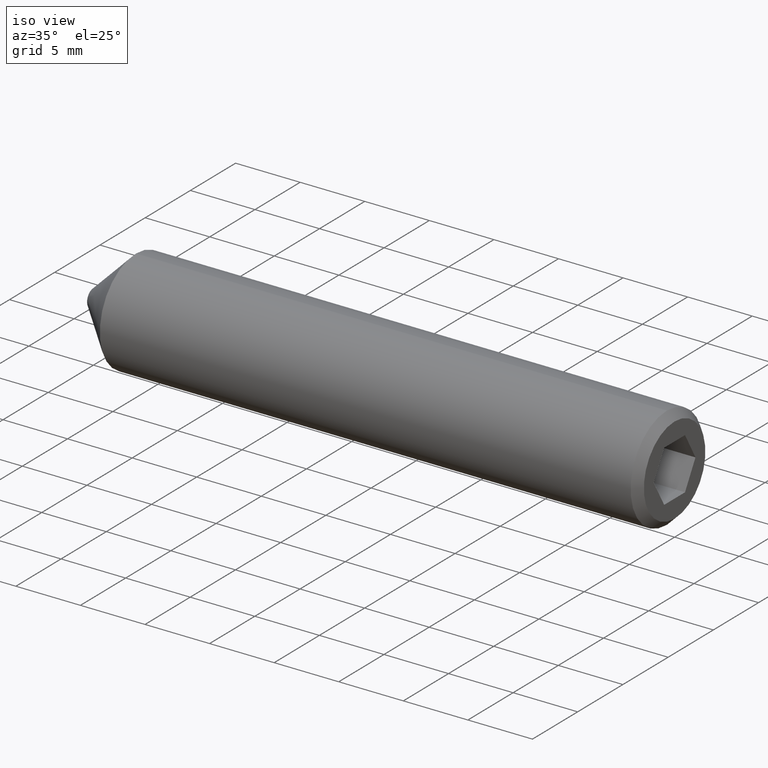
[diagram: clean part render]
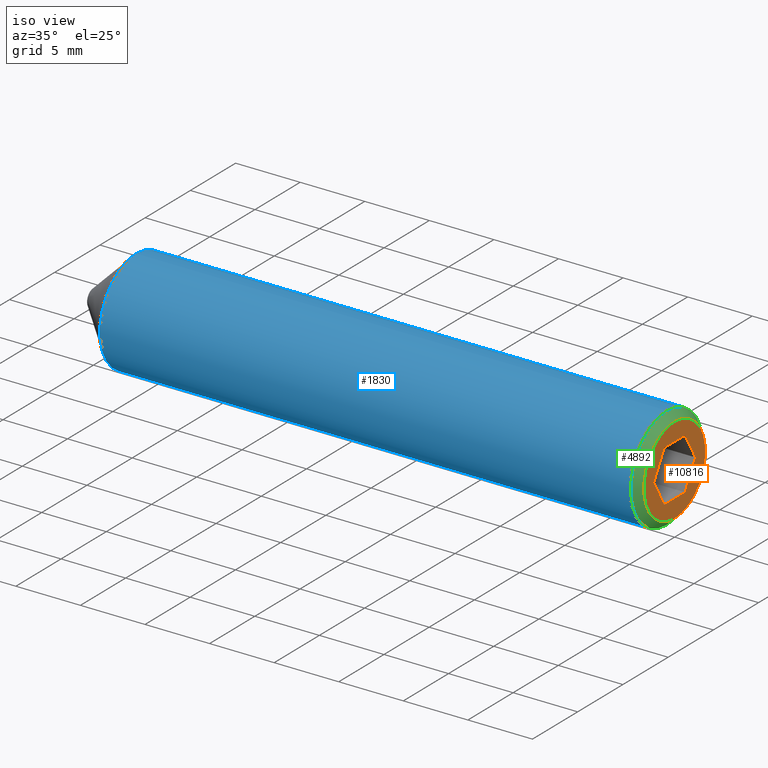
[diagram: same view with three faces highlighted in distinct colors, each labeled with its STEP entity id]
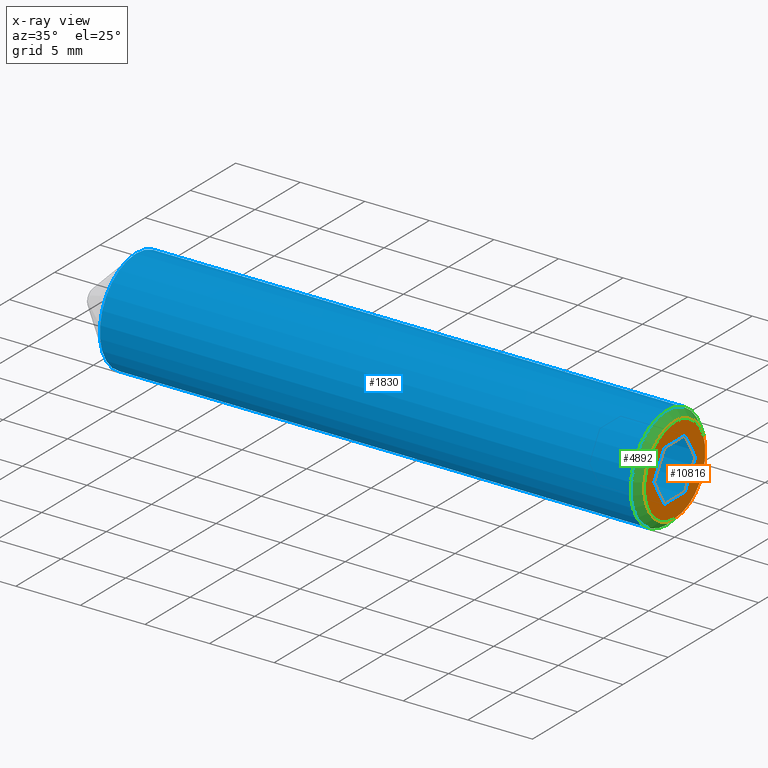
[diagram: x-ray of the same camera — body ghosted, the three highlighted faces saturated]
A machine part, iso view with three faces highlighted in distinct colors.
The next image is the same camera in x-ray (body ghosted, the three faces saturated) — at least one of them is partly hidden behind the body in this view.
Their STEP definitions:

[orange] entity #10816 — the highlighted planar face has unit normal (1, 0, 0).
#40 = VERTEX_POINT ( 'NONE', #8803 ) ;
#804 = AXIS2_PLACEMENT_3D ( 'NONE', #1740, #2762, #2798 ) ;
#1196 = VERTEX_POINT ( 'NONE', #9132 ) ;
#1583 = VERTEX_POINT ( 'NONE', #8084 ) ;
#1740 = CARTESIAN_POINT ( 'NONE',  ( 45.00000000000000000, 0.0000000000000000000, 0.0000000000000000000 ) ) ;
#1875 = ORIENTED_EDGE ( 'NONE', *, *, #10530, .T. ) ;
#1965 = EDGE_LOOP ( 'NONE', ( #11202, #7532, #4875, #8077, #11696, #6477 ) ) ;
#1986 = CARTESIAN_POINT ( 'NONE',  ( 45.00000000000000000, 1.154700538379252400, -1.999999999999999600 ) ) ;
#2159 = CARTESIAN_POINT ( 'NONE',  ( 45.00000000000000000, 0.0000000000000000000, -3.399999999999996400 ) ) ;
#2344 = LINE ( 'NONE', #11885, #6543 ) ;
#2460 = CARTESIAN_POINT ( 'NONE',  ( 45.00000000000000000, -1.154700538379252400, -1.999999999999999600 ) ) ;
#2674 = DIRECTION ( 'NONE',  ( 0.0000000000000000000, -0.4999999999999997200, 0.8660254037844388200 ) ) ;
#2678 = DIRECTION ( 'NONE',  ( 0.0000000000000000000, -1.000000000000000000, 0.0000000000000000000 ) ) ;
#2762 = DIRECTION ( 'NONE',  ( 1.000000000000000000, 0.0000000000000000000, 0.0000000000000000000 ) ) ;
#2798 = DIRECTION ( 'NONE',  ( 0.0000000000000000000, 0.0000000000000000000, -1.000000000000000000 ) ) ;
#2840 = VERTEX_POINT ( 'NONE', #3550 ) ;
#2936 = EDGE_CURVE ( 'NONE', #7315, #40, #6070, .T. ) ;
#3550 = CARTESIAN_POINT ( 'NONE',  ( 45.00000000000000000, 1.154700538379252100, 2.000000000000000000 ) ) ;
#3848 = DIRECTION ( 'NONE',  ( 0.0000000000000000000, 0.4999999999999999400, 0.8660254037844386000 ) ) ;
#3849 = EDGE_CURVE ( 'NONE', #1583, #2840, #9956, .T. ) ;
#3865 = VERTEX_POINT ( 'NONE', #2159 ) ;
#3950 = CIRCLE ( 'NONE', #804, 3.399999999999996400 ) ;
#4415 = PLANE ( 'NONE',  #4852 ) ;
#4852 = AXIS2_PLACEMENT_3D ( 'NONE', #6359, #10997, #8159 ) ;
#4875 = ORIENTED_EDGE ( 'NONE', *, *, #3849, .F. ) ;
#4887 = CARTESIAN_POINT ( 'NONE',  ( 45.00000000000000000, -1.154700538379251000, 2.000000000000000000 ) ) ;
#5028 = LINE ( 'NONE', #1986, #7333 ) ;
#5356 = EDGE_CURVE ( 'NONE', #1196, #1583, #5028, .T. ) ;
#5366 = CARTESIAN_POINT ( 'NONE',  ( 45.00000000000000000, -2.309401076758502500, 4.317532481129756600E-016 ) ) ;
#5836 = DIRECTION ( 'NONE',  ( 0.0000000000000000000, -0.4999999999999999400, -0.8660254037844386000 ) ) ;
#6070 = LINE ( 'NONE', #5366, #8074 ) ;
#6122 = LINE ( 'NONE', #7778, #11729 ) ;
#6356 = CARTESIAN_POINT ( 'NONE',  ( 45.00000000000000000, 2.309401076758503400, -8.844675031407550400E-016 ) ) ;
#6359 = CARTESIAN_POINT ( 'NONE',  ( 45.00000000000000000, 0.0000000000000000000, 0.0000000000000000000 ) ) ;
#6477 = ORIENTED_EDGE ( 'NONE', *, *, #2936, .F. ) ;
#6481 = VECTOR ( 'NONE', #2674, 1000.000000000000000 ) ;
#6543 = VECTOR ( 'NONE', #2678, 1000.000000000000000 ) ;
#6671 = EDGE_LOOP ( 'NONE', ( #1875 ) ) ;
#7315 = VERTEX_POINT ( 'NONE', #9057 ) ;
#7333 = VECTOR ( 'NONE', #3848, 1000.000000000000100 ) ;
#7532 = ORIENTED_EDGE ( 'NONE', *, *, #10832, .F. ) ;
#7778 = CARTESIAN_POINT ( 'NONE',  ( 45.00000000000000000, -1.154700538379251000, 2.000000000000000000 ) ) ;
#8069 = DIRECTION ( 'NONE',  ( 0.0000000000000000000, 1.000000000000000000, 0.0000000000000000000 ) ) ;
#8074 = VECTOR ( 'NONE', #10948, 1000.000000000000000 ) ;
#8077 = ORIENTED_EDGE ( 'NONE', *, *, #5356, .F. ) ;
#8084 = CARTESIAN_POINT ( 'NONE',  ( 45.00000000000000000, 2.309401076758503400, -8.844675031407550400E-016 ) ) ;
#8159 = DIRECTION ( 'NONE',  ( 0.0000000000000000000, 0.0000000000000000000, -1.000000000000000000 ) ) ;
#8803 = CARTESIAN_POINT ( 'NONE',  ( 45.00000000000000000, -1.154700538379252400, -1.999999999999999600 ) ) ;
#9057 = CARTESIAN_POINT ( 'NONE',  ( 45.00000000000000000, -2.309401076758502900, 2.168404344971008900E-016 ) ) ;
#9132 = CARTESIAN_POINT ( 'NONE',  ( 45.00000000000000000, 1.154700538379252400, -1.999999999999999600 ) ) ;
#9258 = VERTEX_POINT ( 'NONE', #4887 ) ;
#9956 = LINE ( 'NONE', #6356, #6481 ) ;
#10014 = VECTOR ( 'NONE', #8069, 1000.000000000000000 ) ;
#10155 = FACE_OUTER_BOUND ( 'NONE', #6671, .T. ) ;
#10530 = EDGE_CURVE ( 'NONE', #3865, #3865, #3950, .T. ) ;
#10687 = EDGE_CURVE ( 'NONE', #9258, #7315, #6122, .T. ) ;
#10816 = ADVANCED_FACE ( 'NONE', ( #10887, #10155 ), #4415, .T. ) ;
#10832 = EDGE_CURVE ( 'NONE', #2840, #9258, #2344, .T. ) ;
#10887 = FACE_BOUND ( 'NONE', #1965, .T. ) ;
#10948 = DIRECTION ( 'NONE',  ( 0.0000000000000000000, 0.4999999999999995600, -0.8660254037844389300 ) ) ;
#10997 = DIRECTION ( 'NONE',  ( 1.000000000000000000, 0.0000000000000000000, 0.0000000000000000000 ) ) ;
#11156 = LINE ( 'NONE', #2460, #10014 ) ;
#11202 = ORIENTED_EDGE ( 'NONE', *, *, #10687, .F. ) ;
#11306 = EDGE_CURVE ( 'NONE', #40, #1196, #11156, .T. ) ;
#11696 = ORIENTED_EDGE ( 'NONE', *, *, #11306, .F. ) ;
#11729 = VECTOR ( 'NONE', #5836, 1000.000000000000100 ) ;
#11885 = CARTESIAN_POINT ( 'NONE',  ( 45.00000000000000000, 1.154700538379252100, 2.000000000000000000 ) ) ;

[blue] entity #1830 — the highlighted cylindrical surface (bore or boss wall) has radius 4 mm, axis along (-1, -0, -0).
#599 = EDGE_CURVE ( 'NONE', #11907, #11907, #2755, .T. ) ;
#835 = FACE_OUTER_BOUND ( 'NONE', #10318, .T. ) ;
#1140 = FACE_OUTER_BOUND ( 'NONE', #8410, .T. ) ;
#1688 = CIRCLE ( 'NONE', #1885, 4.000000000000000000 ) ;
#1785 = CARTESIAN_POINT ( 'NONE',  ( 44.39999999999999100, 0.0000000000000000000, 0.0000000000000000000 ) ) ;
#1830 = ADVANCED_FACE ( 'NONE', ( #835, #1140 ), #11407, .T. ) ;
#1885 = AXIS2_PLACEMENT_3D ( 'NONE', #1785, #9302, #5918 ) ;
#2241 = CARTESIAN_POINT ( 'NONE',  ( 3.299999999999963000, 0.0000000000000000000, 4.000000000000000000 ) ) ;
#2319 = CARTESIAN_POINT ( 'NONE',  ( 44.39999999999999100, 0.0000000000000000000, -4.000000000000000000 ) ) ;
#2755 = CIRCLE ( 'NONE', #6389, 4.000000000000000000 ) ;
#3115 = ORIENTED_EDGE ( 'NONE', *, *, #4883, .T. ) ;
#4187 = CARTESIAN_POINT ( 'NONE',  ( 3.299999999999963000, 0.0000000000000000000, 0.0000000000000000000 ) ) ;
#4370 = AXIS2_PLACEMENT_3D ( 'NONE', #11304, #8303, #8346 ) ;
#4883 = EDGE_CURVE ( 'NONE', #7611, #7611, #1688, .T. ) ;
#5918 = DIRECTION ( 'NONE',  ( 0.0000000000000000000, 0.0000000000000000000, -1.000000000000000000 ) ) ;
#6264 = ORIENTED_EDGE ( 'NONE', *, *, #599, .F. ) ;
#6389 = AXIS2_PLACEMENT_3D ( 'NONE', #4187, #10652, #9809 ) ;
#7611 = VERTEX_POINT ( 'NONE', #2319 ) ;
#8303 = DIRECTION ( 'NONE',  ( -1.000000000000000000, -0.0000000000000000000, -0.0000000000000000000 ) ) ;
#8346 = DIRECTION ( 'NONE',  ( 0.0000000000000000000, 0.0000000000000000000, 1.000000000000000000 ) ) ;
#8410 = EDGE_LOOP ( 'NONE', ( #6264 ) ) ;
#9302 = DIRECTION ( 'NONE',  ( -1.000000000000000000, 0.0000000000000000000, 0.0000000000000000000 ) ) ;
#9809 = DIRECTION ( 'NONE',  ( 0.0000000000000000000, 0.0000000000000000000, 1.000000000000000000 ) ) ;
#10318 = EDGE_LOOP ( 'NONE', ( #3115 ) ) ;
#10652 = DIRECTION ( 'NONE',  ( -1.000000000000000000, -0.0000000000000000000, -0.0000000000000000000 ) ) ;
#11304 = CARTESIAN_POINT ( 'NONE',  ( 45.00000000000000000, 0.0000000000000000000, 0.0000000000000000000 ) ) ;
#11407 = CYLINDRICAL_SURFACE ( 'NONE', #4370, 4.000000000000000000 ) ;
#11907 = VERTEX_POINT ( 'NONE', #2241 ) ;

[green] entity #4892 — the highlighted conical surface has half-angle 45 deg.
#225 = ORIENTED_EDGE ( 'NONE', *, *, #10530, .F. ) ;
#804 = AXIS2_PLACEMENT_3D ( 'NONE', #1740, #2762, #2798 ) ;
#1688 = CIRCLE ( 'NONE', #1885, 4.000000000000000000 ) ;
#1740 = CARTESIAN_POINT ( 'NONE',  ( 45.00000000000000000, 0.0000000000000000000, 0.0000000000000000000 ) ) ;
#1785 = CARTESIAN_POINT ( 'NONE',  ( 44.39999999999999100, 0.0000000000000000000, 0.0000000000000000000 ) ) ;
#1885 = AXIS2_PLACEMENT_3D ( 'NONE', #1785, #9302, #5918 ) ;
#1898 = DIRECTION ( 'NONE',  ( -1.000000000000000000, 0.0000000000000000000, 0.0000000000000000000 ) ) ;
#2159 = CARTESIAN_POINT ( 'NONE',  ( 45.00000000000000000, 0.0000000000000000000, -3.399999999999996400 ) ) ;
#2319 = CARTESIAN_POINT ( 'NONE',  ( 44.39999999999999100, 0.0000000000000000000, -4.000000000000000000 ) ) ;
#2762 = DIRECTION ( 'NONE',  ( 1.000000000000000000, 0.0000000000000000000, 0.0000000000000000000 ) ) ;
#2798 = DIRECTION ( 'NONE',  ( 0.0000000000000000000, 0.0000000000000000000, -1.000000000000000000 ) ) ;
#3865 = VERTEX_POINT ( 'NONE', #2159 ) ;
#3950 = CIRCLE ( 'NONE', #804, 3.399999999999996400 ) ;
#4868 = CONICAL_SURFACE ( 'NONE', #10415, 3.399999999999996400, 0.7853981633974485000 ) ;
#4883 = EDGE_CURVE ( 'NONE', #7611, #7611, #1688, .T. ) ;
#4892 = ADVANCED_FACE ( 'NONE', ( #5452, #8194 ), #4868, .T. ) ;
#5452 = FACE_OUTER_BOUND ( 'NONE', #6627, .T. ) ;
#5477 = CARTESIAN_POINT ( 'NONE',  ( 45.00000000000000000, 0.0000000000000000000, 0.0000000000000000000 ) ) ;
#5918 = DIRECTION ( 'NONE',  ( 0.0000000000000000000, 0.0000000000000000000, -1.000000000000000000 ) ) ;
#6029 = ORIENTED_EDGE ( 'NONE', *, *, #4883, .F. ) ;
#6627 = EDGE_LOOP ( 'NONE', ( #6029 ) ) ;
#7611 = VERTEX_POINT ( 'NONE', #2319 ) ;
#7804 = EDGE_LOOP ( 'NONE', ( #225 ) ) ;
#8194 = FACE_BOUND ( 'NONE', #7804, .T. ) ;
#8725 = DIRECTION ( 'NONE',  ( 0.0000000000000000000, 0.0000000000000000000, 1.000000000000000000 ) ) ;
#9302 = DIRECTION ( 'NONE',  ( -1.000000000000000000, 0.0000000000000000000, 0.0000000000000000000 ) ) ;
#10415 = AXIS2_PLACEMENT_3D ( 'NONE', #5477, #1898, #8725 ) ;
#10530 = EDGE_CURVE ( 'NONE', #3865, #3865, #3950, .T. ) ;